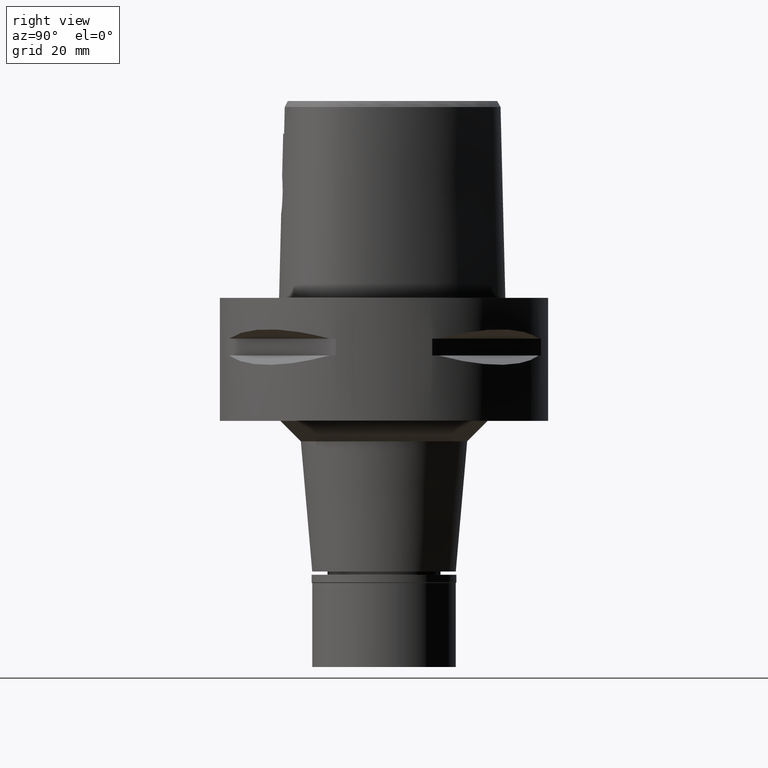
[diagram: clean part render]
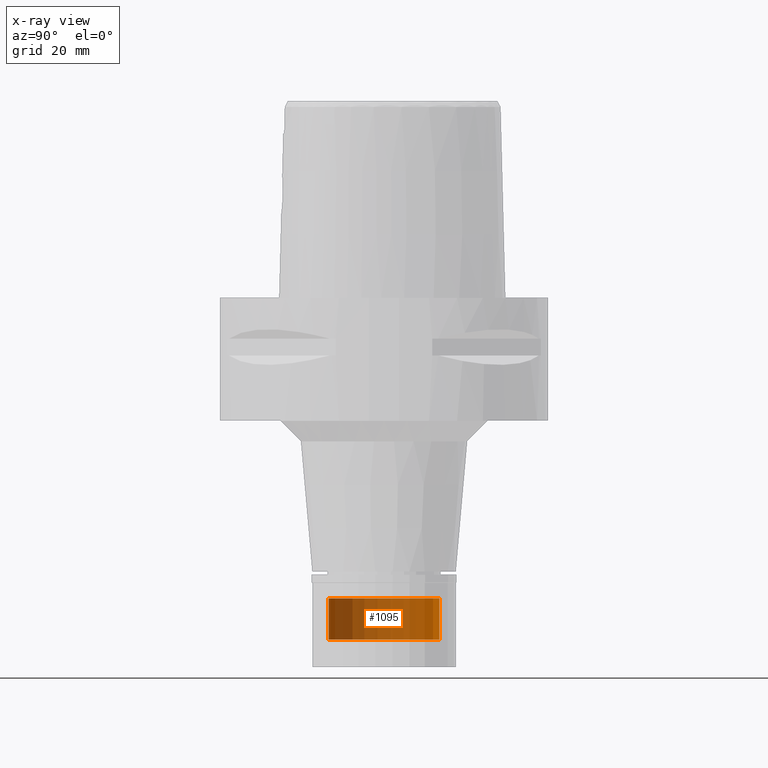
[diagram: x-ray — body ghosted, one internal face saturated and labeled with its STEP entity id]
A machine part, right view, then the same camera in x-ray: the body is ghosted and one INTERNAL B-rep face — a face not visible from any outside direction — is saturated and labeled: STEP entity #1095.
In plain terms, the highlighted cylindrical surface (partial cylindrical patch) has radius 13.5 mm, axis along (0, 0, -1).
Its self-contained STEP definition (entity closure, byte-faithful):
#301 = CARTESIAN_POINT ( 'NONE',  ( 0.0000000000000000000, 1.275653338331999844E-14, -83.29999999999999716 ) ) ;
#319 = VERTEX_POINT ( 'NONE', #4291 ) ;
#324 = DIRECTION ( 'NONE',  ( 0.0000000000000000000, 0.0000000000000000000, -1.000000000000000000 ) ) ;
#459 = CIRCLE ( 'NONE', #1111, 13.50000000000000000 ) ;
#756 = DIRECTION ( 'NONE',  ( 0.0000000000000000000, 0.0000000000000000000, 1.000000000000000000 ) ) ;
#758 = DIRECTION ( 'NONE',  ( 0.0000000000000000000, -1.000000000000000000, 0.0000000000000000000 ) ) ;
#812 = DIRECTION ( 'NONE',  ( 0.0000000000000000000, 0.0000000000000000000, -1.000000000000000000 ) ) ;
#929 = EDGE_CURVE ( 'NONE', #1167, #1734, #1869, .T. ) ;
#962 = VECTOR ( 'NONE', #2326, 1000.000000000000000 ) ;
#1095 = ADVANCED_FACE ( 'NONE', ( #1160 ), #2288, .T. ) ;
#1111 = AXIS2_PLACEMENT_3D ( 'NONE', #301, #756, #1925 ) ;
#1160 = FACE_OUTER_BOUND ( 'NONE', #4380, .T. ) ;
#1161 = EDGE_CURVE ( 'NONE', #319, #1734, #459, .T. ) ;
#1167 = VERTEX_POINT ( 'NONE', #3236 ) ;
#1207 = AXIS2_PLACEMENT_3D ( 'NONE', #4339, #812, #758 ) ;
#1241 = ORIENTED_EDGE ( 'NONE', *, *, #1161, .T. ) ;
#1453 = ORIENTED_EDGE ( 'NONE', *, *, #2683, .T. ) ;
#1719 = CARTESIAN_POINT ( 'NONE',  ( 0.0000000000000000000, 13.50000000000000000, -73.29999999999999716 ) ) ;
#1734 = VERTEX_POINT ( 'NONE', #3234 ) ;
#1869 = LINE ( 'NONE', #2693, #2366 ) ;
#1925 = DIRECTION ( 'NONE',  ( 0.0000000000000000000, 1.000000000000000000, 0.0000000000000000000 ) ) ;
#2288 = CYLINDRICAL_SURFACE ( 'NONE', #3181, 13.50000000000000000 ) ;
#2326 = DIRECTION ( 'NONE',  ( 0.0000000000000000000, 0.0000000000000000000, -1.000000000000000000 ) ) ;
#2366 = VECTOR ( 'NONE', #4665, 1000.000000000000000 ) ;
#2683 = EDGE_CURVE ( 'NONE', #3098, #319, #4194, .T. ) ;
#2693 = CARTESIAN_POINT ( 'NONE',  ( 0.0000000000000000000, -13.50000000000000000, -73.29999999999999716 ) ) ;
#3048 = CARTESIAN_POINT ( 'NONE',  ( 0.0000000000000000000, 13.50000000000000000, -73.29999999999999716 ) ) ;
#3098 = VERTEX_POINT ( 'NONE', #1719 ) ;
#3181 = AXIS2_PLACEMENT_3D ( 'NONE', #4300, #324, #3919 ) ;
#3211 = ORIENTED_EDGE ( 'NONE', *, *, #4090, .T. ) ;
#3234 = CARTESIAN_POINT ( 'NONE',  ( 0.0000000000000000000, -13.50000000000000000, -83.29999999999999716 ) ) ;
#3236 = CARTESIAN_POINT ( 'NONE',  ( 0.0000000000000000000, -13.50000000000000000, -73.29999999999999716 ) ) ;
#3668 = CIRCLE ( 'NONE', #1207, 13.50000000000000000 ) ;
#3919 = DIRECTION ( 'NONE',  ( 0.0000000000000000000, -1.000000000000000000, 0.0000000000000000000 ) ) ;
#4090 = EDGE_CURVE ( 'NONE', #1167, #3098, #3668, .T. ) ;
#4194 = LINE ( 'NONE', #3048, #962 ) ;
#4291 = CARTESIAN_POINT ( 'NONE',  ( 0.0000000000000000000, 13.50000000000000000, -83.29999999999999716 ) ) ;
#4300 = CARTESIAN_POINT ( 'NONE',  ( 0.0000000000000000000, 1.275653338331999844E-14, 4.165000000000000036 ) ) ;
#4320 = ORIENTED_EDGE ( 'NONE', *, *, #929, .F. ) ;
#4339 = CARTESIAN_POINT ( 'NONE',  ( 0.0000000000000000000, 1.275653338331999844E-14, -73.29999999999999716 ) ) ;
#4380 = EDGE_LOOP ( 'NONE', ( #1241, #4320, #3211, #1453 ) ) ;
#4665 = DIRECTION ( 'NONE',  ( 0.0000000000000000000, 0.0000000000000000000, -1.000000000000000000 ) ) ;